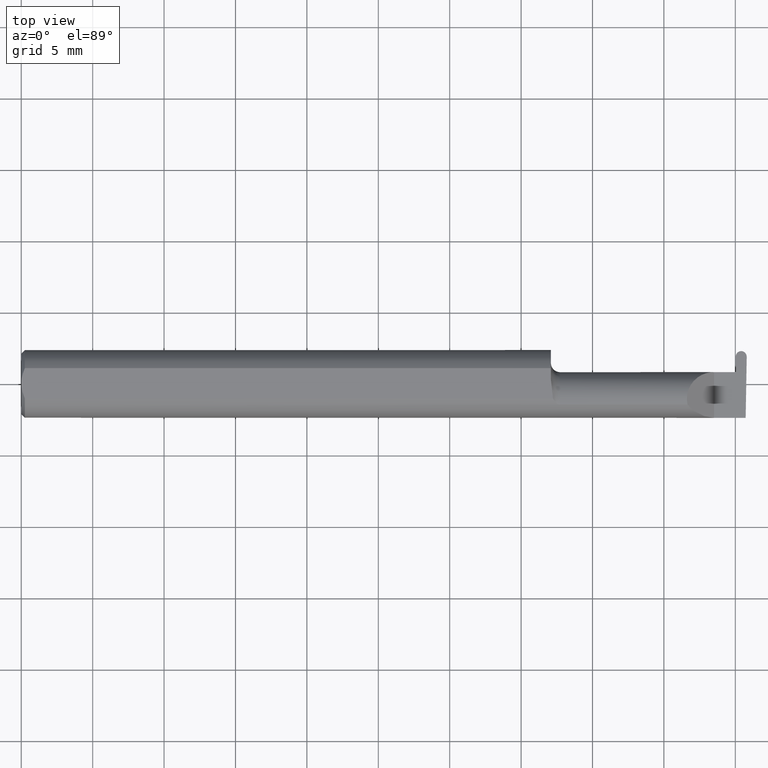
[diagram: clean part render]
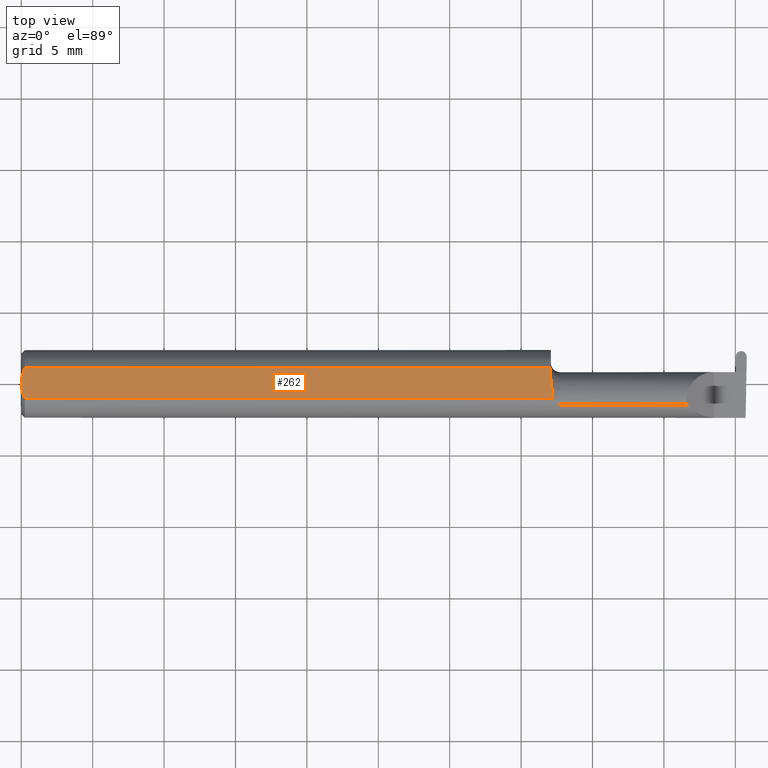
[diagram: same view with one face highlighted and labeled with its STEP entity id]
A machine part, top view. The second image highlights one B-rep face of the part: STEP entity #262.
In plain terms, the highlighted planar face has unit normal (0, 0, 1).
Its self-contained STEP definition (entity closure, byte-faithful):
#9 = EDGE_CURVE ( 'NONE', #570, #230, #616, .T. ) ;
#27 = VERTEX_POINT ( 'NONE', #291 ) ;
#32 = DIRECTION ( 'NONE',  ( 1.000000000000000000, 0.000000000000000000, 0.000000000000000000 ) ) ;
#37 = CARTESIAN_POINT ( 'NONE',  ( 0.01000000000000016674, -0.04209513035969864037, 0.08359999999999988274 ) ) ;
#41 = VECTOR ( 'NONE', #655, 39.37007874015748143 ) ;
#49 = CARTESIAN_POINT ( 'NONE',  ( 0.004492168231814808177, 0.02859366993844194779, 0.08359999999999991049 ) ) ;
#70 = EDGE_LOOP ( 'NONE', ( #88, #231, #453, #632, #214, #606 ) ) ;
#88 = ORIENTED_EDGE ( 'NONE', *, *, #303, .T. ) ;
#91 = DIRECTION ( 'NONE',  ( -1.000000000000000000, -0.000000000000000000, -0.000000000000000000 ) ) ;
#120 = EDGE_CURVE ( 'NONE', #367, #332, #269, .T. ) ;
#125 = LINE ( 'NONE', #503, #41 ) ;
#134 = CARTESIAN_POINT ( 'NONE',  ( 0.01000000000000016674, -0.04209513035969864037, 0.08359999999999988274 ) ) ;
#151 = CARTESIAN_POINT ( 'NONE',  ( 0.000000000000000000, 0.000000000000000000, 0.08359999999999991049 ) ) ;
#161 = EDGE_CURVE ( 'NONE', #332, #27, #179, .T. ) ;
#171 = CARTESIAN_POINT ( 'NONE',  ( 0.000000000000000000, 0.04209513035969864037, 0.08359999999999988274 ) ) ;
#179 = B_SPLINE_CURVE_WITH_KNOTS ( 'NONE', 3,
 ( #254, #548, #431, #49, #442, #386 ),
 .UNSPECIFIED., .F., .F.,
 ( 4, 2, 4 ),
 ( 0.001744210492668864416, 0.002295110172257193264, 0.002846009851845522111 ),
 .UNSPECIFIED. ) ;
#181 = AXIS2_PLACEMENT_3D ( 'NONE', #458, #343, #236 ) ;
#209 = VERTEX_POINT ( 'NONE', #682 ) ;
#211 = CARTESIAN_POINT ( 'NONE',  ( 2.387527623501553705E-17, -0.01462709520273675068, 0.08359999999999991049 ) ) ;
#214 = ORIENTED_EDGE ( 'NONE', *, *, #161, .F. ) ;
#230 = VERTEX_POINT ( 'NONE', #457 ) ;
#231 = ORIENTED_EDGE ( 'NONE', *, *, #9, .T. ) ;
#236 = DIRECTION ( 'NONE',  ( 1.000000000000000000, 0.000000000000000000, -0.000000000000000000 ) ) ;
#245 = CARTESIAN_POINT ( 'NONE',  ( 0.000000000000000000, -0.04209513035969864037, 0.08359999999999988274 ) ) ;
#254 = CARTESIAN_POINT ( 'NONE',  ( 0.000000000000000000, 0.000000000000000000, 0.08359999999999991049 ) ) ;
#262 = ADVANCED_FACE ( 'NONE', ( #406 ), #665, .T. ) ;
#269 = B_SPLINE_CURVE_WITH_KNOTS ( 'NONE', 3,
 ( #134, #352, #211, #151 ),
 .UNSPECIFIED., .F., .F.,
 ( 4, 4 ),
 ( 0.0006429768761302093617, 0.001744210492668864416 ),
 .UNSPECIFIED. ) ;
#286 = VECTOR ( 'NONE', #91, 39.37007874015748143 ) ;
#291 = CARTESIAN_POINT ( 'NONE',  ( 0.01000000000000016674, 0.04209513035969864037, 0.08359999999999988274 ) ) ;
#294 = CARTESIAN_POINT ( 'NONE',  ( 1.461463898467976863, -0.005727447913487265958, 0.08359999999999991049 ) ) ;
#300 = CARTESIAN_POINT ( 'NONE',  ( 1.460000000000000187, 0.003280657920457281333, 0.08359999999999991049 ) ) ;
#303 = EDGE_CURVE ( 'NONE', #367, #570, #532, .T. ) ;
#319 = CARTESIAN_POINT ( 'NONE',  ( 1.466129652885479473, -0.04209513035970119388, 0.08359999999999991049 ) ) ;
#332 = VERTEX_POINT ( 'NONE', #690 ) ;
#343 = DIRECTION ( 'NONE',  ( 0.000000000000000000, 0.000000000000000000, 1.000000000000000000 ) ) ;
#352 = CARTESIAN_POINT ( 'NONE',  ( 0.004072204388638868758, -0.02891446873729324601, 0.08359999999999991049 ) ) ;
#356 = CARTESIAN_POINT ( 'NONE',  ( 1.466082007218903360, -0.03301619840524121219, 0.08359999999999991049 ) ) ;
#367 = VERTEX_POINT ( 'NONE', #37 ) ;
#386 = CARTESIAN_POINT ( 'NONE',  ( 0.01000000000000016674, 0.04209513035969864037, 0.08359999999999988274 ) ) ;
#390 = LINE ( 'NONE', #171, #286 ) ;
#406 = FACE_OUTER_BOUND ( 'NONE', #70, .T. ) ;
#431 = CARTESIAN_POINT ( 'NONE',  ( 0.0009807498324118613890, 0.01453516766257752398, 0.08359999999999992437 ) ) ;
#436 = EDGE_CURVE ( 'NONE', #209, #27, #390, .T. ) ;
#442 = CARTESIAN_POINT ( 'NONE',  ( 0.007036739039485840133, 0.03550621559607060329, 0.08359999999999991049 ) ) ;
#453 = ORIENTED_EDGE ( 'NONE', *, *, #692, .T. ) ;
#457 = CARTESIAN_POINT ( 'NONE',  ( 1.459999999999999964, 0.01227294415283370320, 0.08359999999999991049 ) ) ;
#458 = CARTESIAN_POINT ( 'NONE',  ( 2.191425808082400728, 0.09360000000000005815, 0.08359999999999991049 ) ) ;
#503 = CARTESIAN_POINT ( 'NONE',  ( 1.459999999999999964, 0.09360000000000004428, 0.08359999999999991049 ) ) ;
#516 = CARTESIAN_POINT ( 'NONE',  ( 1.464570820222980130, -0.02392027542784320657, 0.08359999999999992437 ) ) ;
#532 = LINE ( 'NONE', #245, #643 ) ;
#548 = CARTESIAN_POINT ( 'NONE',  ( 2.476070721796526867E-17, 0.007317304829308955878, 0.08359999999999991049 ) ) ;
#570 = VERTEX_POINT ( 'NONE', #319 ) ;
#577 = CARTESIAN_POINT ( 'NONE',  ( 1.466129652885479473, -0.04209513035970119388, 0.08359999999999991049 ) ) ;
#606 = ORIENTED_EDGE ( 'NONE', *, *, #120, .F. ) ;
#616 = B_SPLINE_CURVE_WITH_KNOTS ( 'NONE', 3,
 ( #577, #356, #516, #294, #300, #619 ),
 .UNSPECIFIED., .F., .F.,
 ( 4, 2, 4 ),
 ( 0.009672910729349523326, 0.01035804079918429405, 0.01104317086901906476 ),
 .UNSPECIFIED. ) ;
#619 = CARTESIAN_POINT ( 'NONE',  ( 1.459999999999999964, 0.01227294415283370320, 0.08359999999999991049 ) ) ;
#632 = ORIENTED_EDGE ( 'NONE', *, *, #436, .T. ) ;
#643 = VECTOR ( 'NONE', #32, 39.37007874015748143 ) ;
#655 = DIRECTION ( 'NONE',  ( -3.351349113377345711E-17, 1.000000000000000000, 0.000000000000000000 ) ) ;
#665 = PLANE ( 'NONE',  #181 ) ;
#682 = CARTESIAN_POINT ( 'NONE',  ( 1.459999999999999964, 0.04209513035969864037, 0.08359999999999988274 ) ) ;
#690 = CARTESIAN_POINT ( 'NONE',  ( 0.000000000000000000, 0.000000000000000000, 0.08359999999999991049 ) ) ;
#692 = EDGE_CURVE ( 'NONE', #230, #209, #125, .T. ) ;